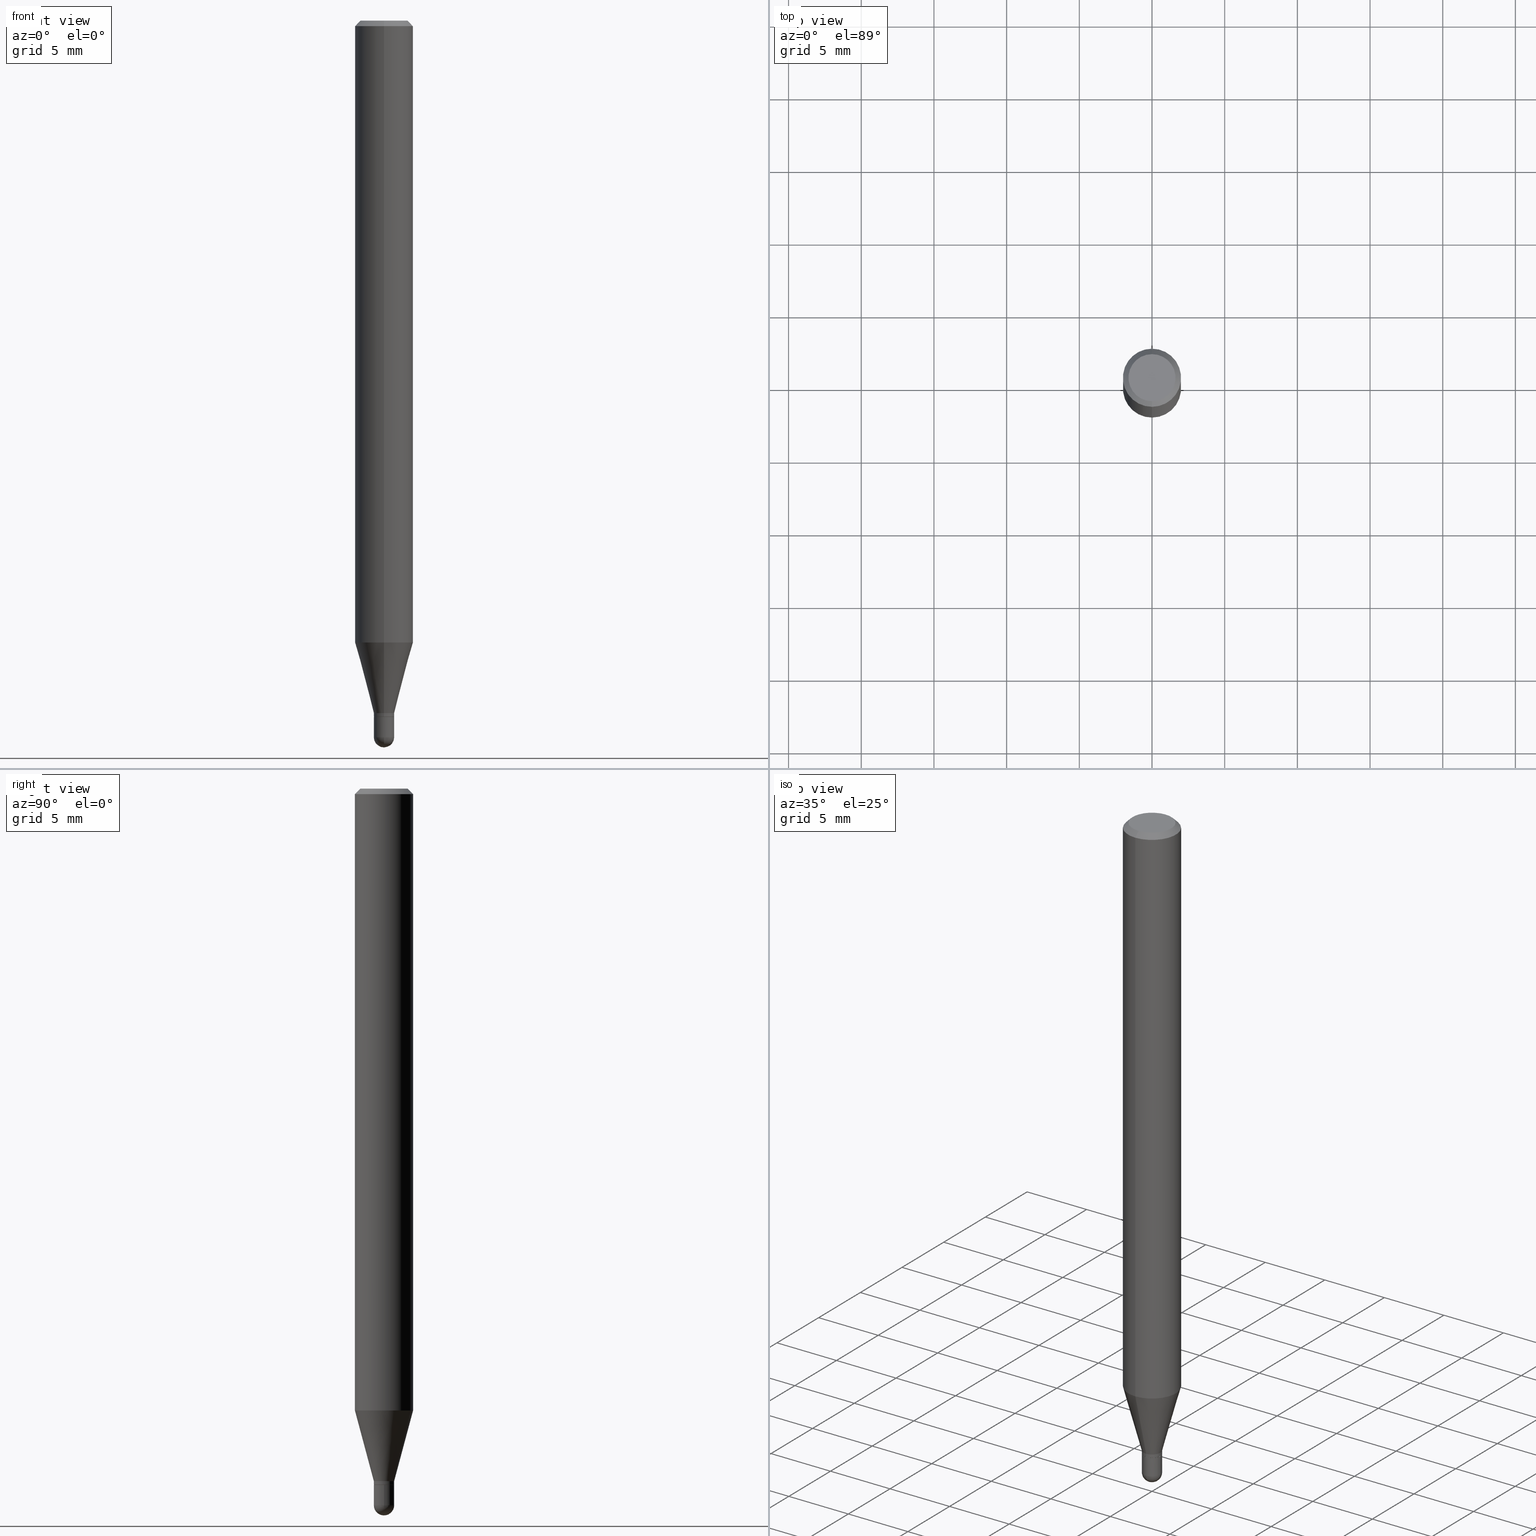
[diagram: canonical four-view strip — front | top / right | iso, engineering-drawing reading convention]
A machine part, canonical four-view strip (front | top / right | iso — engineering-drawing reading convention). The complete STEP part file that produces these views, byte-faithful:
ISO-10303-21;
HEADER;
FILE_DESCRIPTION (( 'STEP AP203' ),
    '1' );
FILE_NAME ('02983.STEP',
    '2024-03-07T22:19:05',
    ( '' ),
    ( '' ),
    'SwSTEP 2.0',
    'SolidWorks 2023',
    '' );
FILE_SCHEMA (( 'CONFIG_CONTROL_DESIGN' ));
ENDSEC;

DATA;
#1 = EDGE_CURVE ( 'NONE', #455, #329, #6, .T. ) ;
#2 = VERTEX_POINT ( 'NONE', #449 ) ;
#3 = SHAPE_DEFINITION_REPRESENTATION ( #394, #492 ) ;
#4 = COORDINATED_UNIVERSAL_TIME_OFFSET ( 5, 0, .BEHIND. ) ;
#5 = ORIENTED_EDGE ( 'NONE', *, *, #356, .F. ) ;
#6 = CIRCLE ( 'NONE', #76, 0.02754999999999999810 ) ;
#7 = ORGANIZATION ( 'UNSPECIFIED', 'UNSPECIFIED', '' ) ;
#8 = CARTESIAN_POINT ( 'NONE',  ( 0.000000000000000000, 0.000000000000000000, 0.000000000000000000 ) ) ;
#9 = VECTOR ( 'NONE', #184, 39.37007874015748143 ) ;
#10 = ORIENTED_EDGE ( 'NONE', *, *, #80, .T. ) ;
#11 = PERSON_AND_ORGANIZATION_ROLE ( 'design_supplier' ) ;
#12 = CARTESIAN_POINT ( 'NONE',  ( 0.02754999999999999810, -1.923806217702566205E-16, 1.343386701731780333E-30 ) ) ;
#13 = ORIENTED_EDGE ( 'NONE', *, *, #204, .T. ) ;
#14 = DATE_AND_TIME ( #168, #362 ) ;
#15 = DIRECTION ( 'NONE',  ( 5.024295867788190974E-15, 0.7071067811865681119, 0.7071067811865270336 ) ) ;
#16 = CARTESIAN_POINT ( 'NONE',  ( 3.776534640565365081E-16, 0.02754999999999337840, -1.875499999999999945 ) ) ;
#17 = EDGE_CURVE ( 'NONE', #208, #159, #420, .T. ) ;
#18 = CC_DESIGN_SECURITY_CLASSIFICATION ( #503, ( #245 ) ) ;
#19 = CARTESIAN_POINT ( 'NONE',  ( 0.000000000000000000, 0.000000000000000000, 0.000000000000000000 ) ) ;
#20 = CIRCLE ( 'NONE', #466, 0.02755000000000000157 ) ;
#21 = ORIENTED_EDGE ( 'NONE', *, *, #330, .F. ) ;
#22 = FACE_OUTER_BOUND ( 'NONE', #480, .T. ) ;
#23 = CC_DESIGN_PERSON_AND_ORGANIZATION_ASSIGNMENT ( #219, #337, ( #311 ) ) ;
#24 = CARTESIAN_POINT ( 'NONE',  ( -1.923806217702102502E-16, -0.02755000000000647556, -1.875499999999999945 ) ) ;
#25 = DIRECTION ( 'NONE',  ( -2.445423250412128530E-29, 3.491546577302966933E-15, 1.000000000000000000 ) ) ;
#26 = DIRECTION ( 'NONE',  ( -7.105427357601001070E-15, -1.000000000000000000, 0.000000000000000000 ) ) ;
#27 = AXIS2_PLACEMENT_3D ( 'NONE', #473, #81, #358 ) ;
#28 = EDGE_CURVE ( 'NONE', #389, #329, #105, .T. ) ;
#29 = DIRECTION ( 'NONE',  ( -2.445468806185136597E-29, 3.491481338843145583E-15, 1.000000000000000000 ) ) ;
#30 = CARTESIAN_POINT ( 'NONE',  ( 4.586391306147947121E-29, -6.548395605731713920E-15, -1.875499999999999945 ) ) ;
#31 = ADVANCED_FACE ( 'NONE', ( #309 ), #266, .T. ) ;
#32 = CARTESIAN_POINT ( 'NONE',  ( 2.589334612204455354E-45, -3.697021528363617418E-31, -1.058849265364624943E-16 ) ) ;
#33 = AXIS2_PLACEMENT_3D ( 'NONE', #395, #303, #141 ) ;
#34 = CIRCLE ( 'NONE', #320, 0.07875000000000000056 ) ;
#35 = CARTESIAN_POINT ( 'NONE',  ( 0.000000000000000000, 0.000000000000000000, 0.000000000000000000 ) ) ;
#36 = CIRCLE ( 'NONE', #46, 0.07875000000000000056 ) ;
#37 = DIRECTION ( 'NONE',  ( -2.445423250412128530E-29, 3.491546577302966933E-15, 1.000000000000000000 ) ) ;
#38 = CARTESIAN_POINT ( 'NONE',  ( 4.119117382740675669E-29, -5.881227389489135250E-15, -1.684418998652474020 ) ) ;
#39 = ORIENTED_EDGE ( 'NONE', *, *, #100, .T. ) ;
#40 = ADVANCED_FACE ( 'NONE', ( #186 ), #104, .T. ) ;
#41 = DIRECTION ( 'NONE',  ( -2.445423250412128530E-29, 3.491546577302966933E-15, 1.000000000000000000 ) ) ;
#42 = ORIENTED_EDGE ( 'NONE', *, *, #121, .T. ) ;
#43 = DIRECTION ( 'NONE',  ( 2.445423250412128530E-29, -3.491546577302966933E-15, -1.000000000000000000 ) ) ;
#44 = EDGE_CURVE ( 'NONE', #407, #431, #60, .T. ) ;
#45 = VERTEX_POINT ( 'NONE', #427 ) ;
#46 = AXIS2_PLACEMENT_3D ( 'NONE', #38, #504, #114 ) ;
#47 = DIRECTION ( 'NONE',  ( 2.445423250412127969E-29, -3.491546577302966933E-15, -1.000000000000000000 ) ) ;
#48 = ORIENTED_EDGE ( 'NONE', *, *, #121, .F. ) ;
#49 = EDGE_LOOP ( 'NONE', ( #497, #413 ) ) ;
#50 = PERSON_AND_ORGANIZATION ( #283, #7 ) ;
#51 = EDGE_LOOP ( 'NONE', ( #319, #444, #318, #477 ) ) ;
#52 = APPLICATION_CONTEXT ( 'configuration controlled 3d designs of mechanical parts and assemblies' ) ;
#53 = CLOSED_SHELL ( 'NONE', ( #377, #505, #284, #64, #390, #472, #448, #180, #289, #190, #484, #464 ) ) ;
#54 = CALENDAR_DATE ( 2024, 7, 3 ) ;
#55 = VECTOR ( 'NONE', #25, 39.37007874015748143 ) ;
#56 = ORIENTED_EDGE ( 'NONE', *, *, #28, .T. ) ;
#57 = CC_DESIGN_PERSON_AND_ORGANIZATION_ASSIGNMENT ( #66, #59, ( #89 ) ) ;
#58 = DIRECTION ( 'NONE',  ( -6.982962677686264344E-15, -1.000000000000000000, 3.496114991891765576E-15 ) ) ;
#59 = PERSON_AND_ORGANIZATION_ROLE ( 'design_owner' ) ;
#60 = LINE ( 'NONE', #12, #355 ) ;
#61 = CARTESIAN_POINT ( 'NONE',  ( 5.499083108677937401E-16, 0.07874999999999994504, -0.01500000000000038282 ) ) ;
#62 = APPLICATION_PROTOCOL_DEFINITION ( 'international standard', 'config_control_design', 1994, #52 ) ;
#63 = ORIENTED_EDGE ( 'NONE', *, *, #80, .F. ) ;
#64 = ADVANCED_FACE ( 'NONE', ( #70 ), #256, .T. ) ;
#65 = CARTESIAN_POINT ( 'NONE',  ( 4.744176696238351867E-29, -6.780164606559253859E-15, -1.940949999999999953 ) ) ;
#66 = PERSON_AND_ORGANIZATION ( #283, #7 ) ;
#67 = DIRECTION ( 'NONE',  ( -2.445423250412128530E-29, 3.491546577302966933E-15, 1.000000000000000000 ) ) ;
#68 = VECTOR ( 'NONE', #71, 39.37007874015748143 ) ;
#69 = VERTEX_POINT ( 'NONE', #258 ) ;
#70 = FACE_OUTER_BOUND ( 'NONE', #206, .T. ) ;
#71 = DIRECTION ( 'NONE',  ( -2.445468806185136877E-29, 3.491481338843145188E-15, 1.000000000000000000 ) ) ;
#72 = LINE ( 'NONE', #231, #68 ) ;
#73 = FACE_OUTER_BOUND ( 'NONE', #508, .T. ) ;
#74 = CARTESIAN_POINT ( 'NONE',  ( 4.610356454001986157E-29, -6.582612762189284831E-15, -1.885300000000000198 ) ) ;
#75 = DIRECTION ( 'NONE',  ( -6.982962677686266711E-15, -1.000000000000000000, 0.000000000000000000 ) ) ;
#76 = AXIS2_PLACEMENT_3D ( 'NONE', #385, #129, #416 ) ;
#77 = CYLINDRICAL_SURFACE ( 'NONE', #442, 0.07875000000000000056 ) ;
#78 = ORIENTED_EDGE ( 'NONE', *, *, #212, .T. ) ;
#79 = CIRCLE ( 'NONE', #254, 0.02705000000000000113 ) ;
#80 = EDGE_CURVE ( 'NONE', #174, #69, #150, .T. ) ;
#81 = DIRECTION ( 'NONE',  ( -2.445423250412128530E-29, 3.491546577302966933E-15, 1.000000000000000000 ) ) ;
#82 = DIRECTION ( 'NONE',  ( -6.982962677686265922E-15, -1.000000000000000000, 0.000000000000000000 ) ) ;
#83 = ORIENTED_EDGE ( 'NONE', *, *, #479, .T. ) ;
#84 = ORIENTED_EDGE ( 'NONE', *, *, #212, .F. ) ;
#85 = ORIENTED_EDGE ( 'NONE', *, *, #246, .F. ) ;
#86 = FACE_OUTER_BOUND ( 'NONE', #338, .T. ) ;
#87 = DATE_TIME_ROLE ( 'creation_date' ) ;
#88 = ORIENTED_EDGE ( 'NONE', *, *, #462, .T. ) ;
#89 = PRODUCT ( '02983', '02983', '', ( #224 ) ) ;
#90 = PERSON_AND_ORGANIZATION ( #283, #7 ) ;
#91 = ORIENTED_EDGE ( 'NONE', *, *, #468, .T. ) ;
#92 =( GEOMETRIC_REPRESENTATION_CONTEXT ( 3 ) GLOBAL_UNCERTAINTY_ASSIGNED_CONTEXT ( ( #349 ) ) GLOBAL_UNIT_ASSIGNED_CONTEXT ( ( #446, #489, #452 ) ) REPRESENTATION_CONTEXT ( 'NONE', 'WORKASPACE' ) );
#93 = DIRECTION ( 'NONE',  ( 6.982962677686266711E-15, 1.000000000000000000, 0.000000000000000000 ) ) ;
#94 = PERSON_AND_ORGANIZATION ( #283, #7 ) ;
#95 = DIRECTION ( 'NONE',  ( -2.445468806185136877E-29, 3.491481338843145188E-15, 1.000000000000000000 ) ) ;
#96 = DIRECTION ( 'NONE',  ( -6.982962677686266711E-15, -1.000000000000000000, 0.000000000000000000 ) ) ;
#97 = CARTESIAN_POINT ( 'NONE',  ( 5.595524044111202169E-16, 0.07874999999999994504, -0.01500000000000038282 ) ) ;
#98 = ORIENTED_EDGE ( 'NONE', *, *, #44, .T. ) ;
#99 = MANIFOLD_SOLID_BREP ( 'Body-Move/Copy2[2]', #53 ) ;
#100 = EDGE_CURVE ( 'NONE', #159, #69, #384, .T. ) ;
#101 = AXIS2_PLACEMENT_3D ( 'NONE', #348, #225, #151 ) ;
#102 = CONICAL_SURFACE ( 'NONE', #305, 0.02754999999999992524, 0.2617993877991505181 ) ;
#103 = CARTESIAN_POINT ( 'NONE',  ( 4.611579165627192145E-29, -6.584358535477935160E-15, -1.885800000000000143 ) ) ;
#104 = SPHERICAL_SURFACE ( 'NONE', #154, 0.02755000000000005014 ) ;
#105 = CIRCLE ( 'NONE', #306, 0.02755000000000005014 ) ;
#106 = MANIFOLD_SOLID_BREP ( 'Body-Move/Copy2[1]', #304 ) ;
#107 = FACE_OUTER_BOUND ( 'NONE', #293, .T. ) ;
#108 = DIRECTION ( 'NONE',  ( -2.445423250412128530E-29, 3.491546577302966933E-15, 1.000000000000000000 ) ) ;
#109 = CARTESIAN_POINT ( 'NONE',  ( 0.000000000000000000, 0.000000000000000000, 0.000000000000000000 ) ) ;
#110 = CARTESIAN_POINT ( 'NONE',  ( 4.611579165627192145E-29, -6.584358535477935160E-15, -1.885800000000000143 ) ) ;
#111 = VERTEX_POINT ( 'NONE', #97 ) ;
#112 = CARTESIAN_POINT ( 'NONE',  ( 4.611579165627192145E-29, -6.584358535477935160E-15, -1.885800000000000143 ) ) ;
#113 = AXIS2_PLACEMENT_3D ( 'NONE', #19, #226, #422 ) ;
#114 = DIRECTION ( 'NONE',  ( -6.982962677686264344E-15, -1.000000000000000000, 3.469013325287953293E-15 ) ) ;
#115 = ORIENTED_EDGE ( 'NONE', *, *, #179, .F. ) ;
#116 = AXIS2_PLACEMENT_3D ( 'NONE', #65, #424, #139 ) ;
#117 = DIRECTION ( 'NONE',  ( -2.445423250412127969E-29, 3.491546577302966933E-15, 1.000000000000000000 ) ) ;
#118 = DIRECTION ( 'NONE',  ( 1.000000000000000000, -6.982962677686257244E-15, 0.000000000000000000 ) ) ;
#119 = APPLICATION_CONTEXT ( 'configuration controlled 3d designs of mechanical parts and assemblies' ) ;
#120 = ORIENTED_EDGE ( 'NONE', *, *, #402, .T. ) ;
#121 = EDGE_CURVE ( 'NONE', #259, #111, #308, .T. ) ;
#122 = DIRECTION ( 'NONE',  ( 1.000000000000000000, -6.982962677686256455E-15, 0.000000000000000000 ) ) ;
#123 = EDGE_CURVE ( 'NONE', #170, #414, #345, .T. ) ;
#124 = ORIENTED_EDGE ( 'NONE', *, *, #298, .F. ) ;
#125 = DIRECTION ( 'NONE',  ( -2.445423250412128530E-29, 3.491546577302966933E-15, 1.000000000000000000 ) ) ;
#126 = ORIENTED_EDGE ( 'NONE', *, *, #44, .F. ) ;
#127 = APPROVAL_PERSON_ORGANIZATION ( #50, #388, #379 ) ;
#128 = CALENDAR_DATE ( 2024, 7, 3 ) ;
#129 = DIRECTION ( 'NONE',  ( -2.445468806185136597E-29, 3.491481338843145583E-15, 1.000000000000000000 ) ) ;
#130 = PLANE ( 'NONE',  #327 ) ;
#131 = PRODUCT_RELATED_PRODUCT_CATEGORY ( 'detail', '', ( #89 ) ) ;
#132 = PERSON_AND_ORGANIZATION ( #283, #7 ) ;
#133 = ORIENTED_EDGE ( 'NONE', *, *, #146, .F. ) ;
#134 = ORIENTED_EDGE ( 'NONE', *, *, #216, .F. ) ;
#135 = EDGE_CURVE ( 'NONE', #45, #242, #295, .T. ) ;
#136 = DIRECTION ( 'NONE',  ( -6.982962677686264344E-15, -1.000000000000000000, 3.491546577302966539E-15 ) ) ;
#137 = LENGTH_MEASURE_WITH_UNIT ( LENGTH_MEASURE( 0.02539999999999999897 ), #340 );
#138 = ORIENTED_EDGE ( 'NONE', *, *, #351, .T. ) ;
#139 = DIRECTION ( 'NONE',  ( 6.982962677686266711E-15, 1.000000000000000000, 0.000000000000000000 ) ) ;
#140 = APPLICATION_PROTOCOL_DEFINITION ( 'international standard', 'config_control_design', 1994, #119 ) ;
#141 = DIRECTION ( 'NONE',  ( 1.000000000000000000, -6.982962677686265922E-15, 4.876176775795936353E-29 ) ) ;
#142 = ORIENTED_EDGE ( 'NONE', *, *, #28, .F. ) ;
#143 = EDGE_CURVE ( 'NONE', #2, #414, #335, .T. ) ;
#144 = CARTESIAN_POINT ( 'NONE',  ( 4.611665074703931259E-29, -6.584235508790404762E-15, -1.885800000000000143 ) ) ;
#145 = ADVANCED_FACE ( 'NONE', ( #453 ), #207, .T. ) ;
#146 = EDGE_CURVE ( 'NONE', #389, #287, #499, .T. ) ;
#147 = AXIS2_PLACEMENT_3D ( 'NONE', #382, #456, #177 ) ;
#148 = APPROVAL_PERSON_ORGANIZATION ( #279, #171, #167 ) ;
#149 = DIRECTION ( 'NONE',  ( -2.445423250412128530E-29, 3.491546577302966933E-15, 1.000000000000000000 ) ) ;
#150 = CIRCLE ( 'NONE', #370, 0.02754999999999992524 ) ;
#151 = DIRECTION ( 'NONE',  ( -6.982962677686265922E-15, -1.000000000000000000, 0.000000000000000000 ) ) ;
#152 = CARTESIAN_POINT ( 'NONE',  ( 4.975360907851465623E-16, 0.06375000000000000111, -3.284710208395266353E-16 ) ) ;
#153 = CC_DESIGN_APPROVAL ( #388, ( #311 ) ) ;
#154 = AXIS2_PLACEMENT_3D ( 'NONE', #341, #263, #93 ) ;
#155 = DIRECTION ( 'NONE',  ( -6.982962677686264344E-15, -1.000000000000000000, 3.491546577302966933E-15 ) ) ;
#156 = CARTESIAN_POINT ( 'NONE',  ( 4.746532679365040693E-29, -6.776790704627602522E-15, -1.940949999999999953 ) ) ;
#157 = CYLINDRICAL_SURFACE ( 'NONE', #328, 0.02754999999999992524 ) ;
#158 = CC_DESIGN_DATE_AND_TIME_ASSIGNMENT ( #334, #250, ( #503 ) ) ;
#159 = VERTEX_POINT ( 'NONE', #496 ) ;
#160 = DIRECTION ( 'NONE',  ( 1.000000000000000000, -6.982962677686257244E-15, 0.000000000000000000 ) ) ;
#161 = AXIS2_PLACEMENT_3D ( 'NONE', #30, #192, #238 ) ;
#162 = DIRECTION ( 'NONE',  ( -2.445423250412128530E-29, 3.491546577302966933E-15, 1.000000000000000000 ) ) ;
#163 = ORIENTED_EDGE ( 'NONE', *, *, #146, .T. ) ;
#164 = DIRECTION ( 'NONE',  ( -2.445423250412128530E-29, 3.491546577302966933E-15, 1.000000000000000000 ) ) ;
#165 = CARTESIAN_POINT ( 'NONE',  ( -0.02755000000000000157, -6.484758583007096301E-15, -1.885800000000000143 ) ) ;
#166 = ORIENTED_EDGE ( 'NONE', *, *, #204, .F. ) ;
#167 = APPROVAL_ROLE ( '' ) ;
#168 = CALENDAR_DATE ( 2024, 7, 3 ) ;
#169 = VECTOR ( 'NONE', #490, 39.37007874015748143 ) ;
#170 = VERTEX_POINT ( 'NONE', #300 ) ;
#171 = APPROVAL ( #321, 'UNSPECIFIED' ) ;
#172 = LOCAL_TIME ( 17, 19, 5.000000000000000000, #454 ) ;
#173 = AXIS2_PLACEMENT_3D ( 'NONE', #112, #117, #198 ) ;
#174 = VERTEX_POINT ( 'NONE', #16 ) ;
#175 = DIRECTION ( 'NONE',  ( 6.982962677686264344E-15, 1.000000000000000000, -3.496114991891765576E-15 ) ) ;
#176 = APPROVAL_DATE_TIME ( #14, #388 ) ;
#177 = DIRECTION ( 'NONE',  ( 6.982962677686266711E-15, 1.000000000000000000, 0.000000000000000000 ) ) ;
#178 = LOCAL_TIME ( 17, 19, 5.000000000000000000, #214 ) ;
#179 = EDGE_CURVE ( 'NONE', #237, #111, #257, .T. ) ;
#180 = ADVANCED_FACE ( 'NONE', ( #339 ), #432, .T. ) ;
#181 = AXIS2_PLACEMENT_3D ( 'NONE', #350, #307, #187 ) ;
#182 = APPROVAL_STATUS ( 'not_yet_approved' ) ;
#183 = CARTESIAN_POINT ( 'NONE',  ( -5.402642173245076924E-16, -0.07875000000000004219, -0.01499999999999983118 ) ) ;
#184 = DIRECTION ( 'NONE',  ( -4.937700262164674260E-15, -0.7071067811865632269, 0.7071067811865319186 ) ) ;
#185 = CYLINDRICAL_SURFACE ( 'NONE', #181, 0.02754999999999992524 ) ;
#186 = FACE_OUTER_BOUND ( 'NONE', #366, .T. ) ;
#187 = DIRECTION ( 'NONE',  ( -6.982962677686265922E-15, -1.000000000000000000, 3.491546577302966933E-15 ) ) ;
#188 = CC_DESIGN_PERSON_AND_ORGANIZATION_ASSIGNMENT ( #132, #375, ( #245 ) ) ;
#189 = LINE ( 'NONE', #24, #223 ) ;
#190 = ADVANCED_FACE ( 'NONE', ( #73 ), #408, .F. ) ;
#191 = DIRECTION ( 'NONE',  ( -1.807323732225331717E-15, -0.2588190451025184080, 0.9659258262890689783 ) ) ;
#192 = DIRECTION ( 'NONE',  ( -2.445423250412128530E-29, 3.491546577302966933E-15, 1.000000000000000000 ) ) ;
#193 = CARTESIAN_POINT ( 'NONE',  ( 5.595524044111199211E-16, 0.07874999999999410250, -1.684418998652474242 ) ) ;
#194 = CC_DESIGN_PERSON_AND_ORGANIZATION_ASSIGNMENT ( #94, #11, ( #245 ) ) ;
#195 = CIRCLE ( 'NONE', #276, 0.06375000000000000111 ) ;
#196 = CARTESIAN_POINT ( 'NONE',  ( 0.000000000000000000, 0.000000000000000000, 0.000000000000000000 ) ) ;
#197 = EDGE_LOOP ( 'NONE', ( #85, #282, #83, #115 ) ) ;
#198 = DIRECTION ( 'NONE',  ( -6.982962677686265922E-15, -1.000000000000000000, 3.491546577302966933E-15 ) ) ;
#199 = ORIENTED_EDGE ( 'NONE', *, *, #417, .F. ) ;
#200 = CARTESIAN_POINT ( 'NONE',  ( -1.888891404313674157E-16, -0.02705000000000658961, -1.885800000000000143 ) ) ;
#201 = CIRCLE ( 'NONE', #27, 0.07875000000000000056 ) ;
#202 = ORIENTED_EDGE ( 'NONE', *, *, #246, .T. ) ;
#203 = CARTESIAN_POINT ( 'NONE',  ( 3.668134875618218596E-31, -5.237319865954488043E-17, -0.01500000000000010700 ) ) ;
#204 = EDGE_CURVE ( 'NONE', #159, #242, #434, .T. ) ;
#205 = APPROVAL_DATE_TIME ( #363, #171 ) ;
#206 = EDGE_LOOP ( 'NONE', ( #239, #42, #423, #426 ) ) ;
#207 = SPHERICAL_SURFACE ( 'NONE', #116, 0.02755000000000005014 ) ;
#208 = VERTEX_POINT ( 'NONE', #200 ) ;
#209 = CARTESIAN_POINT ( 'NONE',  ( 4.611579165627192145E-29, -6.584358535477935160E-15, -1.885800000000000143 ) ) ;
#210 = AXIS2_PLACEMENT_3D ( 'NONE', #74, #274, #82 ) ;
#211 = AXIS2_PLACEMENT_3D ( 'NONE', #440, #230, #235 ) ;
#212 = EDGE_CURVE ( 'NONE', #407, #287, #273, .T. ) ;
#213 = CARTESIAN_POINT ( 'NONE',  ( -1.957545237018602807E-16, -0.02755000000000680169, -1.940949999999999953 ) ) ;
#214 = COORDINATED_UNIVERSAL_TIME_OFFSET ( 5, 0, .BEHIND. ) ;
#215 = CARTESIAN_POINT ( 'NONE',  ( 5.595524044110787031E-16, 0.07875000000000000056, -2.749592929626086578E-16 ) ) ;
#216 = EDGE_CURVE ( 'NONE', #478, #431, #20, .T. ) ;
#217 = ORIENTED_EDGE ( 'NONE', *, *, #241, .F. ) ;
#218 = DIRECTION ( 'NONE',  ( 4.937700262164548042E-15, 0.7071067811865451302, -0.7071067811865499042 ) ) ;
#219 = PERSON_AND_ORGANIZATION ( #283, #7 ) ;
#220 = CARTESIAN_POINT ( 'NONE',  ( 4.586391306147947121E-29, -6.548395605731713920E-15, -1.875499999999999945 ) ) ;
#221 = ORIENTED_EDGE ( 'NONE', *, *, #351, .F. ) ;
#222 = CC_DESIGN_APPROVAL ( #445, ( #245 ) ) ;
#223 = VECTOR ( 'NONE', #191, 39.37007874015748854 ) ;
#224 = MECHANICAL_CONTEXT ( 'NONE', #52, 'mechanical' ) ;
#225 = DIRECTION ( 'NONE',  ( -2.445423250412128530E-29, 3.491546577302966933E-15, 1.000000000000000000 ) ) ;
#226 = DIRECTION ( 'NONE',  ( -2.445423250412128530E-29, 3.491546577302966933E-15, 1.000000000000000000 ) ) ;
#227 = EDGE_CURVE ( 'NONE', #329, #407, #347, .T. ) ;
#228 = CONICAL_SURFACE ( 'NONE', #275, 0.02705000000000000113, 0.7853981633974739252 ) ;
#229 = DIRECTION ( 'NONE',  ( -2.445423250412128530E-29, 3.491546577302966933E-15, 1.000000000000000000 ) ) ;
#230 = DIRECTION ( 'NONE',  ( -2.445468806185136597E-29, 3.491481338843145583E-15, 1.000000000000000000 ) ) ;
#231 = CARTESIAN_POINT ( 'NONE',  ( -0.02754999999999999810, 1.957545237019075877E-16, -1.355166617365226390E-30 ) ) ;
#232 = ADVANCED_FACE ( 'NONE', ( #396 ), #400, .T. ) ;
#233 = DIRECTION ( 'NONE',  ( -2.445423250412128530E-29, 3.491546577302966933E-15, 1.000000000000000000 ) ) ;
#234 = AXIS2_PLACEMENT_3D ( 'NONE', #196, #29, #352 ) ;
#235 = DIRECTION ( 'NONE',  ( 1.000000000000000000, -6.982962677686257244E-15, 0.000000000000000000 ) ) ;
#236 = VECTOR ( 'NONE', #37, 39.37007874015748143 ) ;
#237 = VERTEX_POINT ( 'NONE', #152 ) ;
#238 = DIRECTION ( 'NONE',  ( -6.982962677686265922E-15, -1.000000000000000000, 0.000000000000000000 ) ) ;
#239 = ORIENTED_EDGE ( 'NONE', *, *, #405, .T. ) ;
#240 = CARTESIAN_POINT ( 'NONE',  ( 3.668134875618218596E-31, -5.237319865954488043E-17, -0.01500000000000010700 ) ) ;
#241 = EDGE_CURVE ( 'NONE', #242, #174, #313, .T. ) ;
#242 = VERTEX_POINT ( 'NONE', #467 ) ;
#243 = DIRECTION ( 'NONE',  ( 2.445423250412128530E-29, -3.491546577302966933E-15, -1.000000000000000000 ) ) ;
#244 = DIRECTION ( 'NONE',  ( -6.982962677686265922E-15, -1.000000000000000000, 0.000000000000000000 ) ) ;
#245 = PRODUCT_DEFINITION_FORMATION_WITH_SPECIFIED_SOURCE ( 'ANY', '', #89, .NOT_KNOWN. ) ;
#246 = EDGE_CURVE ( 'NONE', #2, #237, #195, .T. ) ;
#247 = EDGE_LOOP ( 'NONE', ( #285, #120, #512, #126, #78 ) ) ;
#248 = CIRCLE ( 'NONE', #101, 0.02754999999999992524 ) ;
#249 = EDGE_LOOP ( 'NONE', ( #217, #138, #39, #63 ) ) ;
#250 = DATE_TIME_ROLE ( 'classification_date' ) ;
#251 = PERSON_AND_ORGANIZATION_ROLE ( 'classification_officer' ) ;
#252 = LOCAL_TIME ( 17, 19, 5.000000000000000000, #367 ) ;
#253 = EDGE_LOOP ( 'NONE', ( #133, #56, #447, #380 ) ) ;
#254 = AXIS2_PLACEMENT_3D ( 'NONE', #103, #229, #268 ) ;
#255 = DIRECTION ( 'NONE',  ( 0.000000000000000000, 0.000000000000000000, 1.000000000000000000 ) ) ;
#256 = CYLINDRICAL_SURFACE ( 'NONE', #113, 0.07875000000000000056 ) ;
#257 = LINE ( 'NONE', #61, #500 ) ;
#258 = CARTESIAN_POINT ( 'NONE',  ( -1.923806217702102502E-16, -0.02755000000000647556, -1.875499999999999945 ) ) ;
#259 = VERTEX_POINT ( 'NONE', #193 ) ;
#260 = CIRCLE ( 'NONE', #372, 0.02754999999999999810 ) ;
#261 = CC_DESIGN_PERSON_AND_ORGANIZATION_ASSIGNMENT ( #90, #251, ( #503 ) ) ;
#262 = CONICAL_SURFACE ( 'NONE', #386, 0.02754999999999992524, 0.2617993877991505181 ) ;
#263 = DIRECTION ( 'NONE',  ( -1.000000000000000000, 6.982962677686266711E-15, -4.883557194083112901E-29 ) ) ;
#264 = CARTESIAN_POINT ( 'NONE',  ( 4.586391306147947121E-29, -6.548395605731713920E-15, -1.875499999999999945 ) ) ;
#265 = CARTESIAN_POINT ( 'NONE',  ( 1.922018100231531827E-16, 0.02704999999999341612, -1.885800000000000143 ) ) ;
#266 = CYLINDRICAL_SURFACE ( 'NONE', #33, 0.02754999999999999810 ) ;
#267 = DIRECTION ( 'NONE',  ( -6.982962677686265922E-15, -1.000000000000000000, 0.000000000000000000 ) ) ;
#268 = DIRECTION ( 'NONE',  ( -6.982962677686266711E-15, -1.000000000000000000, 0.000000000000000000 ) ) ;
#269 = CARTESIAN_POINT ( 'NONE',  ( 1.957545237019070454E-16, 0.02754999999999992524, -9.619210820469647864E-17 ) ) ;
#270 = DIRECTION ( 'NONE',  ( -6.982962677686265922E-15, -1.000000000000000000, 3.491546577302966933E-15 ) ) ;
#271 = CARTESIAN_POINT ( 'NONE',  ( 4.586391306147947121E-29, -6.548395605731713920E-15, -1.875499999999999945 ) ) ;
#272 = EDGE_LOOP ( 'NONE', ( #48, #333, #483, #124 ) ) ;
#273 = CIRCLE ( 'NONE', #459, 0.02754999999999999810 ) ;
#274 = DIRECTION ( 'NONE',  ( -2.445423250412128530E-29, 3.491546577302966933E-15, 1.000000000000000000 ) ) ;
#275 = AXIS2_PLACEMENT_3D ( 'NONE', #209, #301, #96 ) ;
#276 = AXIS2_PLACEMENT_3D ( 'NONE', #32, #233, #397 ) ;
#277 = ORIENTED_EDGE ( 'NONE', *, *, #468, .F. ) ;
#278 = EDGE_CURVE ( 'NONE', #237, #2, #331, .T. ) ;
#279 = PERSON_AND_ORGANIZATION ( #283, #7 ) ;
#280 = DIRECTION ( 'NONE',  ( -2.445423250412128530E-29, 3.491546577302966933E-15, 1.000000000000000000 ) ) ;
#281 = DIRECTION ( 'NONE',  ( -2.445423250412128530E-29, 3.491546577302966933E-15, 1.000000000000000000 ) ) ;
#282 = ORIENTED_EDGE ( 'NONE', *, *, #143, .T. ) ;
#283 = PERSON ( 'UNSPECIFIED', 'UNSPECIFIED', 'UNSPECIFIED', ('UNSPECIFIED'), ('UNSPECIFIED'), ('UNSPECIFIED') ) ;
#284 = ADVANCED_FACE ( 'NONE', ( #365 ), #421, .T. ) ;
#285 = ORIENTED_EDGE ( 'NONE', *, *, #457, .T. ) ;
#286 = DIRECTION ( 'NONE',  ( -6.982962677686264344E-15, -1.000000000000000000, 3.496114991891765576E-15 ) ) ;
#287 = VERTEX_POINT ( 'NONE', #485 ) ;
#288 = AXIS2_PLACEMENT_3D ( 'NONE', #369, #450, #136 ) ;
#289 = ADVANCED_FACE ( 'NONE', ( #86 ), #130, .F. ) ;
#290 = DATE_AND_TIME ( #128, #178 ) ;
#291 = DIRECTION ( 'NONE',  ( 6.982962677686265922E-15, 1.000000000000000000, -3.491546577302966933E-15 ) ) ;
#292 = SECURITY_CLASSIFICATION_LEVEL ( 'unclassified' ) ;
#293 = EDGE_LOOP ( 'NONE', ( #88, #425, #441, #21 ) ) ;
#294 = DIRECTION ( 'NONE',  ( 1.000000000000000000, 0.000000000000000000, 0.000000000000000000 ) ) ;
#295 = LINE ( 'NONE', #265, #346 ) ;
#296 = CIRCLE ( 'NONE', #161, 0.02754999999999992524 ) ;
#297 = APPROVAL_STATUS ( 'not_yet_approved' ) ;
#298 = EDGE_CURVE ( 'NONE', #111, #414, #443, .T. ) ;
#299 = ORIENTED_EDGE ( 'NONE', *, *, #330, .T. ) ;
#300 = CARTESIAN_POINT ( 'NONE',  ( -5.499083108677525221E-16, -0.07875000000000589861, -1.684418998652473798 ) ) ;
#301 = DIRECTION ( 'NONE',  ( -2.445423250412128530E-29, 3.491546577302966933E-15, 1.000000000000000000 ) ) ;
#302 = CARTESIAN_POINT ( 'NONE',  ( -1.923806217702561028E-16, -0.02754999999999992524, 9.619210820469647864E-17 ) ) ;
#303 = DIRECTION ( 'NONE',  ( -2.445468806185136597E-29, 3.491481338843145583E-15, 1.000000000000000000 ) ) ;
#304 = CLOSED_SHELL ( 'NONE', ( #232, #145, #410, #40, #31 ) ) ;
#305 = AXIS2_PLACEMENT_3D ( 'NONE', #271, #280, #244 ) ;
#306 = AXIS2_PLACEMENT_3D ( 'NONE', #428, #342, #26 ) ;
#307 = DIRECTION ( 'NONE',  ( -2.445423250412128530E-29, 3.491546577302966933E-15, 1.000000000000000000 ) ) ;
#308 = LINE ( 'NONE', #215, #55 ) ;
#309 = FACE_OUTER_BOUND ( 'NONE', #439, .T. ) ;
#310 = DESIGN_CONTEXT ( 'detailed design', #119, 'design' ) ;
#311 = PRODUCT_DEFINITION ( 'UNKNOWN', '', #245, #310 ) ;
#312 = CARTESIAN_POINT ( 'NONE',  ( 1.923806217703027935E-16, 0.02754999999999341656, -1.885800000000000143 ) ) ;
#313 = LINE ( 'NONE', #269, #236 ) ;
#314 = AXIS2_PLACEMENT_3D ( 'NONE', #144, #391, #498 ) ;
#315 = FACE_OUTER_BOUND ( 'NONE', #249, .T. ) ;
#316 = DIRECTION ( 'NONE',  ( 6.982962677686264344E-15, 1.000000000000000000, -3.496114991891765576E-15 ) ) ;
#317 = DIRECTION ( 'NONE',  ( -1.000000000000000000, 6.982962677686265922E-15, -4.876176775795935793E-29 ) ) ;
#318 = ORIENTED_EDGE ( 'NONE', *, *, #179, .T. ) ;
#319 = ORIENTED_EDGE ( 'NONE', *, *, #143, .F. ) ;
#320 = AXIS2_PLACEMENT_3D ( 'NONE', #325, #125, #286 ) ;
#321 = APPROVAL_STATUS ( 'not_yet_approved' ) ;
#322 = ORIENTED_EDGE ( 'NONE', *, *, #462, .F. ) ;
#323 = CARTESIAN_POINT ( 'NONE',  ( 4.611665074703931259E-29, -6.584235508790404762E-15, -1.885800000000000143 ) ) ;
#324 = ORIENTED_EDGE ( 'NONE', *, *, #17, .F. ) ;
#325 = CARTESIAN_POINT ( 'NONE',  ( 3.668134875618218596E-31, -5.237319865954488043E-17, -0.01500000000000010700 ) ) ;
#326 = ORIENTED_EDGE ( 'NONE', *, *, #100, .F. ) ;
#327 = AXIS2_PLACEMENT_3D ( 'NONE', #411, #47, #291 ) ;
#328 = AXIS2_PLACEMENT_3D ( 'NONE', #109, #162, #270 ) ;
#329 = VERTEX_POINT ( 'NONE', #213 ) ;
#330 = EDGE_CURVE ( 'NONE', #69, #170, #189, .T. ) ;
#331 = CIRCLE ( 'NONE', #288, 0.06375000000000000111 ) ;
#332 = APPROVAL_ROLE ( '' ) ;
#333 = ORIENTED_EDGE ( 'NONE', *, *, #417, .T. ) ;
#334 = DATE_AND_TIME ( #54, #511 ) ;
#335 = LINE ( 'NONE', #183, #169 ) ;
#336 = ORIENTED_EDGE ( 'NONE', *, *, #17, .T. ) ;
#337 = PERSON_AND_ORGANIZATION_ROLE ( 'creator' ) ;
#338 = EDGE_LOOP ( 'NONE', ( #378, #202 ) ) ;
#339 = FACE_OUTER_BOUND ( 'NONE', #51, .T. ) ;
#340 =( LENGTH_UNIT ( ) NAMED_UNIT ( * ) SI_UNIT ( $, .METRE. ) );
#341 = CARTESIAN_POINT ( 'NONE',  ( 4.744176696238351867E-29, -6.780164606559253859E-15, -1.940949999999999953 ) ) ;
#342 = DIRECTION ( 'NONE',  ( -1.000000000000000000, 7.105427357601001070E-15, -4.926315508542082329E-29 ) ) ;
#343 = EDGE_CURVE ( 'NONE', #45, #208, #79, .T. ) ;
#344 = DIMENSIONAL_EXPONENTS ( 1.000000000000000000, 0.000000000000000000, 0.000000000000000000, 0.000000000000000000, 0.000000000000000000, 0.000000000000000000, 0.000000000000000000 ) ;
#345 = LINE ( 'NONE', #461, #401 ) ;
#346 = VECTOR ( 'NONE', #15, 39.37007874015748143 ) ;
#347 = CIRCLE ( 'NONE', #211, 0.02754999999999999810 ) ;
#348 = CARTESIAN_POINT ( 'NONE',  ( 4.610356454001986157E-29, -6.582612762189284831E-15, -1.885300000000000198 ) ) ;
#349 = UNCERTAINTY_MEASURE_WITH_UNIT (LENGTH_MEASURE( 1.000000000000000082E-05 ), #446, 'distance_accuracy_value', 'NONE');
#350 = CARTESIAN_POINT ( 'NONE',  ( 0.000000000000000000, 0.000000000000000000, 0.000000000000000000 ) ) ;
#351 = EDGE_CURVE ( 'NONE', #242, #159, #248, .T. ) ;
#352 = DIRECTION ( 'NONE',  ( 1.000000000000000000, -6.982962677686265922E-15, 4.876176775795936353E-29 ) ) ;
#353 = CIRCLE ( 'NONE', #475, 0.02705000000000000113 ) ;
#354 = DIRECTION ( 'NONE',  ( -2.445468806185136597E-29, 3.491481338843145583E-15, 1.000000000000000000 ) ) ;
#355 = VECTOR ( 'NONE', #95, 39.37007874015748143 ) ;
#356 = EDGE_CURVE ( 'NONE', #174, #259, #501, .T. ) ;
#357 = CARTESIAN_POINT ( 'NONE',  ( 0.02755000000000000157, -6.776616130560660766E-15, -1.885800000000000143 ) ) ;
#358 = DIRECTION ( 'NONE',  ( -6.982962677686264344E-15, -1.000000000000000000, 3.469013325287953293E-15 ) ) ;
#359 = ORIENTED_EDGE ( 'NONE', *, *, #343, .F. ) ;
#360 = DIRECTION ( 'NONE',  ( -2.445468806185136597E-29, 3.491481338843145583E-15, 1.000000000000000000 ) ) ;
#361 = EDGE_LOOP ( 'NONE', ( #91, #373, #166, #324 ) ) ;
#362 = LOCAL_TIME ( 17, 19, 5.000000000000000000, #4 ) ;
#363 = DATE_AND_TIME ( #437, #252 ) ;
#364 = EDGE_LOOP ( 'NONE', ( #5, #10, #299, #199 ) ) ;
#365 = FACE_OUTER_BOUND ( 'NONE', #197, .T. ) ;
#366 = EDGE_LOOP ( 'NONE', ( #142, #163, #84, #409 ) ) ;
#367 = COORDINATED_UNIVERSAL_TIME_OFFSET ( 5, 0, .BEHIND. ) ;
#368 = ORIENTED_EDGE ( 'NONE', *, *, #343, .T. ) ;
#369 = CARTESIAN_POINT ( 'NONE',  ( 2.589334612204455354E-45, -3.697021528363617418E-31, -1.058849265364624943E-16 ) ) ;
#370 = AXIS2_PLACEMENT_3D ( 'NONE', #220, #67, #392 ) ;
#371 = FACE_OUTER_BOUND ( 'NONE', #361, .T. ) ;
#372 = AXIS2_PLACEMENT_3D ( 'NONE', #507, #465, #118 ) ;
#373 = ORIENTED_EDGE ( 'NONE', *, *, #135, .T. ) ;
#374 = AXIS2_PLACEMENT_3D ( 'NONE', #240, #43, #316 ) ;
#375 = PERSON_AND_ORGANIZATION_ROLE ( 'creator' ) ;
#376 = FACE_OUTER_BOUND ( 'NONE', #364, .T. ) ;
#377 = ADVANCED_FACE ( 'NONE', ( #22 ), #185, .T. ) ;
#378 = ORIENTED_EDGE ( 'NONE', *, *, #278, .T. ) ;
#379 = APPROVAL_ROLE ( '' ) ;
#380 = ORIENTED_EDGE ( 'NONE', *, *, #457, .F. ) ;
#381 = EDGE_CURVE ( 'NONE', #431, #478, #412, .T. ) ;
#382 = CARTESIAN_POINT ( 'NONE',  ( 4.744176696238351867E-29, -6.780164606559253859E-15, -1.940949999999999953 ) ) ;
#383 = APPROVAL_DATE_TIME ( #486, #445 ) ;
#384 = LINE ( 'NONE', #302, #482 ) ;
#385 = CARTESIAN_POINT ( 'NONE',  ( 4.746532679365040693E-29, -6.776790704627602522E-15, -1.940949999999999953 ) ) ;
#386 = AXIS2_PLACEMENT_3D ( 'NONE', #264, #463, #267 ) ;
#387 = CARTESIAN_POINT ( 'NONE',  ( 1.957545237019528979E-16, 0.02754999999999337840, -1.875499999999999945 ) ) ;
#388 = APPROVAL ( #182, 'UNSPECIFIED' ) ;
#389 = VERTEX_POINT ( 'NONE', #460 ) ;
#390 = ADVANCED_FACE ( 'NONE', ( #107 ), #262, .T. ) ;
#391 = DIRECTION ( 'NONE',  ( -2.445468806185136597E-29, 3.491481338843145583E-15, 1.000000000000000000 ) ) ;
#392 = DIRECTION ( 'NONE',  ( -6.982962677686265922E-15, -1.000000000000000000, 0.000000000000000000 ) ) ;
#393 = AXIS2_PLACEMENT_3D ( 'NONE', #8, #255, #294 ) ;
#394 = PRODUCT_DEFINITION_SHAPE ( 'NONE', 'NONE',  #311 ) ;
#395 = CARTESIAN_POINT ( 'NONE',  ( 0.000000000000000000, 0.000000000000000000, 0.000000000000000000 ) ) ;
#396 = FACE_OUTER_BOUND ( 'NONE', #247, .T. ) ;
#397 = DIRECTION ( 'NONE',  ( -6.982962677686264344E-15, -1.000000000000000000, 3.491546577302966539E-15 ) ) ;
#398 = CARTESIAN_POINT ( 'NONE',  ( 0.02754999999999999810, -6.872893728479260435E-15, -1.940949999999999953 ) ) ;
#399 = AXIS2_PLACEMENT_3D ( 'NONE', #488, #243, #175 ) ;
#400 = CYLINDRICAL_SURFACE ( 'NONE', #234, 0.02754999999999999810 ) ;
#401 = VECTOR ( 'NONE', #108, 39.37007874015748143 ) ;
#402 = EDGE_CURVE ( 'NONE', #455, #478, #72, .T. ) ;
#403 = FACE_OUTER_BOUND ( 'NONE', #49, .T. ) ;
#404 = ORIENTED_EDGE ( 'NONE', *, *, #402, .F. ) ;
#405 = EDGE_CURVE ( 'NONE', #170, #259, #36, .T. ) ;
#406 = CARTESIAN_POINT ( 'NONE',  ( -5.499083108677930499E-16, -0.07875000000000004219, -0.01499999999999983118 ) ) ;
#407 = VERTEX_POINT ( 'NONE', #398 ) ;
#408 = PLANE ( 'NONE',  #173 ) ;
#409 = ORIENTED_EDGE ( 'NONE', *, *, #227, .F. ) ;
#410 = ADVANCED_FACE ( 'NONE', ( #403 ), #435, .F. ) ;
#411 = CARTESIAN_POINT ( 'NONE',  ( 4.451638707024993845E-16, 0.06375000000000000111, -2.755285575712953512E-16 ) ) ;
#412 = CIRCLE ( 'NONE', #314, 0.02755000000000000157 ) ;
#413 = ORIENTED_EDGE ( 'NONE', *, *, #216, .T. ) ;
#414 = VERTEX_POINT ( 'NONE', #406 ) ;
#415 = PERSON_AND_ORGANIZATION ( #283, #7 ) ;
#416 = DIRECTION ( 'NONE',  ( 1.000000000000000000, -6.982962677686257244E-15, 0.000000000000000000 ) ) ;
#417 = EDGE_CURVE ( 'NONE', #259, #170, #201, .T. ) ;
#418 = CONICAL_SURFACE ( 'NONE', #493, 0.02705000000000000113, 0.7853981633974739252 ) ;
#419 = COORDINATED_UNIVERSAL_TIME_OFFSET ( 5, 0, .BEHIND. ) ;
#420 = LINE ( 'NONE', #491, #9 ) ;
#421 = CONICAL_SURFACE ( 'NONE', #399, 0.07875000000000000056, 0.7853981633974483900 ) ;
#422 = DIRECTION ( 'NONE',  ( -6.982962677686264344E-15, -1.000000000000000000, 3.491546577302966933E-15 ) ) ;
#423 = ORIENTED_EDGE ( 'NONE', *, *, #479, .F. ) ;
#424 = DIRECTION ( 'NONE',  ( -1.000000000000000000, 6.982962677686266711E-15, -4.883557194083112901E-29 ) ) ;
#425 = ORIENTED_EDGE ( 'NONE', *, *, #356, .T. ) ;
#426 = ORIENTED_EDGE ( 'NONE', *, *, #123, .F. ) ;
#427 = CARTESIAN_POINT ( 'NONE',  ( 1.939781668625531389E-16, 0.02704999999999341612, -1.885800000000000143 ) ) ;
#428 = CARTESIAN_POINT ( 'NONE',  ( 4.744176696238351867E-29, -6.780164606559253859E-15, -1.940949999999999953 ) ) ;
#429 = CARTESIAN_POINT ( 'NONE',  ( 4.611579165627192145E-29, -6.584358535477935160E-15, -1.885800000000000143 ) ) ;
#430 = DIRECTION ( 'NONE',  ( -2.445423250412128530E-29, 3.491546577302966933E-15, 1.000000000000000000 ) ) ;
#431 = VERTEX_POINT ( 'NONE', #357 ) ;
#432 = CONICAL_SURFACE ( 'NONE', #374, 0.07875000000000000056, 0.7853981633974483900 ) ;
#433 = CC_DESIGN_APPROVAL ( #171, ( #503 ) ) ;
#434 = CIRCLE ( 'NONE', #210, 0.02754999999999992524 ) ;
#435 = PLANE ( 'NONE',  #481 ) ;
#436 = ORIENTED_EDGE ( 'NONE', *, *, #135, .F. ) ;
#437 = CALENDAR_DATE ( 2024, 7, 3 ) ;
#438 = DIRECTION ( 'NONE',  ( -6.982962677686266711E-15, -1.000000000000000000, 0.000000000000000000 ) ) ;
#439 = EDGE_LOOP ( 'NONE', ( #404, #471, #495, #98, #134 ) ) ;
#440 = CARTESIAN_POINT ( 'NONE',  ( 4.746532679365040693E-29, -6.776790704627602522E-15, -1.940949999999999953 ) ) ;
#441 = ORIENTED_EDGE ( 'NONE', *, *, #405, .F. ) ;
#442 = AXIS2_PLACEMENT_3D ( 'NONE', #35, #41, #155 ) ;
#443 = CIRCLE ( 'NONE', #476, 0.07875000000000000056 ) ;
#444 = ORIENTED_EDGE ( 'NONE', *, *, #278, .F. ) ;
#445 = APPROVAL ( #297, 'UNSPECIFIED' ) ;
#446 =( CONVERSION_BASED_UNIT ( 'INCH', #137 ) LENGTH_UNIT ( ) NAMED_UNIT ( #344 ) );
#447 = ORIENTED_EDGE ( 'NONE', *, *, #1, .F. ) ;
#448 = ADVANCED_FACE ( 'NONE', ( #506 ), #77, .T. ) ;
#449 = CARTESIAN_POINT ( 'NONE',  ( -4.888104823412213911E-16, -0.06375000000000000111, 1.167011677666016220E-16 ) ) ;
#450 = DIRECTION ( 'NONE',  ( -2.445423250412128530E-29, 3.491546577302966933E-15, 1.000000000000000000 ) ) ;
#451 = APPROVAL_PERSON_ORGANIZATION ( #415, #445, #332 ) ;
#452 =( NAMED_UNIT ( * ) SI_UNIT ( $, .STERADIAN. ) SOLID_ANGLE_UNIT ( ) );
#453 = FACE_OUTER_BOUND ( 'NONE', #253, .T. ) ;
#454 = COORDINATED_UNIVERSAL_TIME_OFFSET ( 5, 0, .BEHIND. ) ;
#455 = VERTEX_POINT ( 'NONE', #470 ) ;
#456 = DIRECTION ( 'NONE',  ( 1.000000000000000000, -6.982962677686265922E-15, 4.883557194083112340E-29 ) ) ;
#457 = EDGE_CURVE ( 'NONE', #287, #455, #260, .T. ) ;
#458 = VECTOR ( 'NONE', #502, 39.37007874015748854 ) ;
#459 = AXIS2_PLACEMENT_3D ( 'NONE', #156, #354, #160 ) ;
#460 = CARTESIAN_POINT ( 'NONE',  ( 4.812727353412096861E-29, -6.874667966478556981E-15, -1.968500000000000139 ) ) ;
#461 = CARTESIAN_POINT ( 'NONE',  ( -5.499083108677933457E-16, -0.07875000000000000056, 2.749592929626086578E-16 ) ) ;
#462 = EDGE_CURVE ( 'NONE', #69, #174, #296, .T. ) ;
#463 = DIRECTION ( 'NONE',  ( -2.445423250412128530E-29, 3.491546577302966933E-15, 1.000000000000000000 ) ) ;
#464 = ADVANCED_FACE ( 'NONE', ( #315 ), #157, .T. ) ;
#465 = DIRECTION ( 'NONE',  ( -2.445468806185136597E-29, 3.491481338843145583E-15, 1.000000000000000000 ) ) ;
#466 = AXIS2_PLACEMENT_3D ( 'NONE', #323, #360, #122 ) ;
#467 = CARTESIAN_POINT ( 'NONE',  ( 1.957545237019524542E-16, 0.02754999999999324656, -1.885300000000000198 ) ) ;
#468 = EDGE_CURVE ( 'NONE', #208, #45, #353, .T. ) ;
#469 = FACE_OUTER_BOUND ( 'NONE', #487, .T. ) ;
#470 = CARTESIAN_POINT ( 'NONE',  ( -0.02754999999999999810, -6.484758583007096301E-15, -1.940949999999999953 ) ) ;
#471 = ORIENTED_EDGE ( 'NONE', *, *, #1, .T. ) ;
#472 = ADVANCED_FACE ( 'NONE', ( #376 ), #102, .T. ) ;
#473 = CARTESIAN_POINT ( 'NONE',  ( 4.119117382740675669E-29, -5.881227389489135250E-15, -1.684418998652474020 ) ) ;
#474 = ORIENTED_EDGE ( 'NONE', *, *, #241, .T. ) ;
#475 = AXIS2_PLACEMENT_3D ( 'NONE', #429, #281, #438 ) ;
#476 = AXIS2_PLACEMENT_3D ( 'NONE', #203, #164, #58 ) ;
#477 = ORIENTED_EDGE ( 'NONE', *, *, #298, .T. ) ;
#478 = VERTEX_POINT ( 'NONE', #165 ) ;
#479 = EDGE_CURVE ( 'NONE', #414, #111, #34, .T. ) ;
#480 = EDGE_LOOP ( 'NONE', ( #13, #474, #322, #326 ) ) ;
#481 = AXIS2_PLACEMENT_3D ( 'NONE', #312, #510, #317 ) ;
#482 = VECTOR ( 'NONE', #149, 39.37007874015748143 ) ;
#483 = ORIENTED_EDGE ( 'NONE', *, *, #123, .T. ) ;
#484 = ADVANCED_FACE ( 'NONE', ( #469 ), #418, .T. ) ;
#485 = CARTESIAN_POINT ( 'NONE',  ( 1.923806217703042479E-16, 0.02754999999999324656, -1.940949999999999953 ) ) ;
#486 = DATE_AND_TIME ( #494, #172 ) ;
#487 = EDGE_LOOP ( 'NONE', ( #436, #368, #336, #221 ) ) ;
#488 = CARTESIAN_POINT ( 'NONE',  ( 3.668134875618218596E-31, -5.237319865954488043E-17, -0.01500000000000010700 ) ) ;
#489 =( NAMED_UNIT ( * ) PLANE_ANGLE_UNIT ( ) SI_UNIT ( $, .RADIAN. ) );
#490 = DIRECTION ( 'NONE',  ( -4.851104656540964275E-15, -0.7071067811865500152, -0.7071067811865450192 ) ) ;
#491 = CARTESIAN_POINT ( 'NONE',  ( -1.888891404313674157E-16, -0.02705000000000658961, -1.885800000000000143 ) ) ;
#492 = ADVANCED_BREP_SHAPE_REPRESENTATION ( '02983', ( #106, #99, #393 ), #92 ) ;
#493 = AXIS2_PLACEMENT_3D ( 'NONE', #110, #430, #75 ) ;
#494 = CALENDAR_DATE ( 2024, 7, 3 ) ;
#495 = ORIENTED_EDGE ( 'NONE', *, *, #227, .T. ) ;
#496 = CARTESIAN_POINT ( 'NONE',  ( -1.923806217702106940E-16, -0.02755000000000660740, -1.885300000000000198 ) ) ;
#497 = ORIENTED_EDGE ( 'NONE', *, *, #381, .T. ) ;
#498 = DIRECTION ( 'NONE',  ( 1.000000000000000000, -6.982962677686256455E-15, 0.000000000000000000 ) ) ;
#499 = CIRCLE ( 'NONE', #147, 0.02755000000000005014 ) ;
#500 = VECTOR ( 'NONE', #218, 39.37007874015748143 ) ;
#501 = LINE ( 'NONE', #387, #458 ) ;
#502 = DIRECTION ( 'NONE',  ( 1.839019923739601893E-15, 0.2588190451025252359, 0.9659258262890670910 ) ) ;
#503 = SECURITY_CLASSIFICATION ( '', '', #292 ) ;
#504 = DIRECTION ( 'NONE',  ( -2.445423250412128530E-29, 3.491546577302966933E-15, 1.000000000000000000 ) ) ;
#505 = ADVANCED_FACE ( 'NONE', ( #371 ), #228, .T. ) ;
#506 = FACE_OUTER_BOUND ( 'NONE', #272, .T. ) ;
#507 = CARTESIAN_POINT ( 'NONE',  ( 4.746532679365040693E-29, -6.776790704627602522E-15, -1.940949999999999953 ) ) ;
#508 = EDGE_LOOP ( 'NONE', ( #277, #359 ) ) ;
#509 = CC_DESIGN_DATE_AND_TIME_ASSIGNMENT ( #290, #87, ( #311 ) ) ;
#510 = DIRECTION ( 'NONE',  ( 2.438088387897960049E-29, -3.491481338843145188E-15, -1.000000000000000000 ) ) ;
#511 = LOCAL_TIME ( 17, 19, 5.000000000000000000, #419 ) ;
#512 = ORIENTED_EDGE ( 'NONE', *, *, #381, .F. ) ;
ENDSEC;
END-ISO-10303-21;
